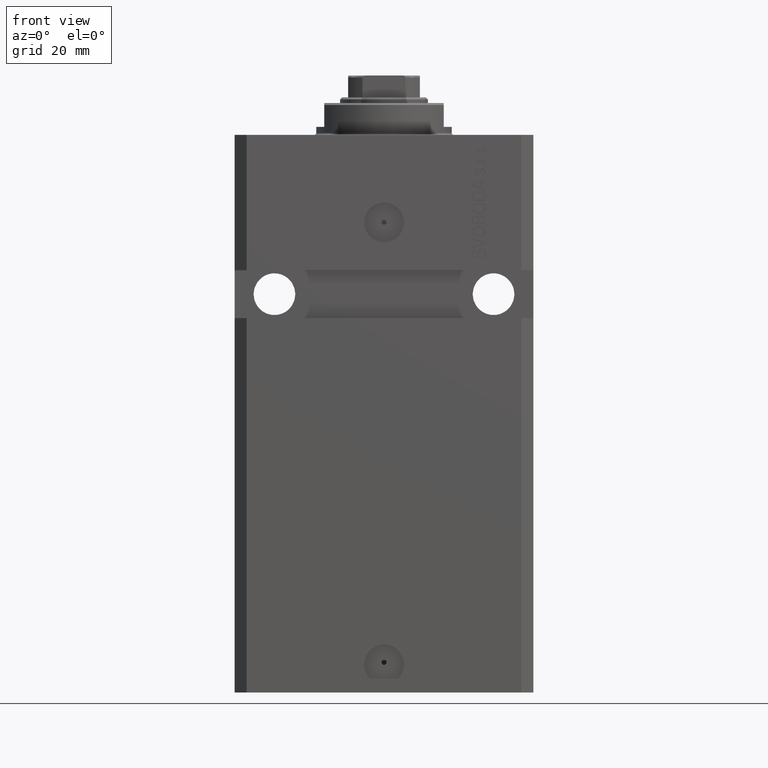
[diagram: clean part render]
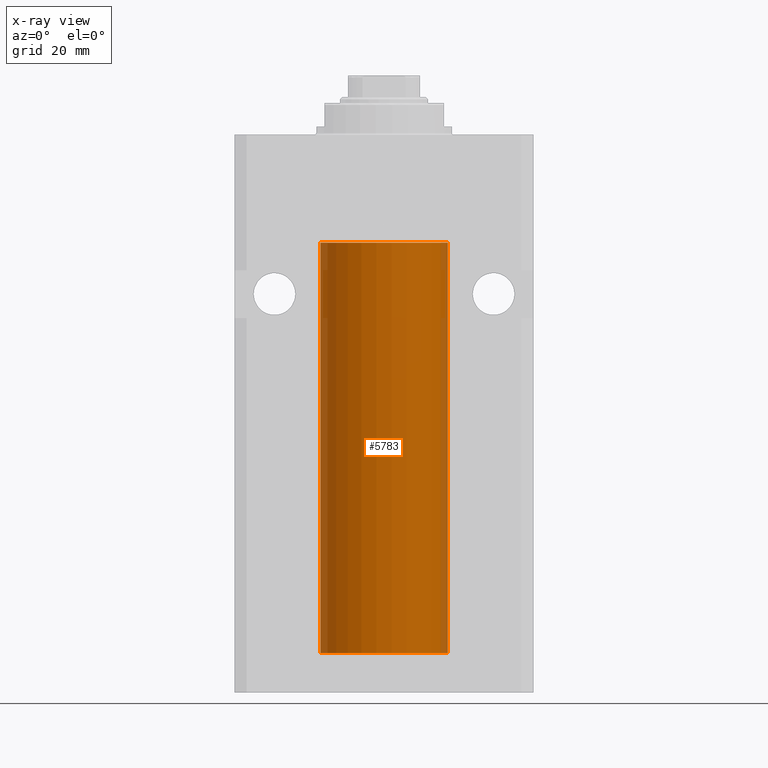
[diagram: x-ray — body ghosted, one internal face saturated and labeled with its STEP entity id]
A machine part, front view, then the same camera in x-ray: the body is ghosted and one INTERNAL B-rep face — a face not visible from any outside direction — is saturated and labeled: STEP entity #5783.
In plain terms, the highlighted cylindrical surface (partial cylindrical patch) has radius 16 mm, axis along (0, 0, 1).
Its self-contained STEP definition (entity closure, byte-faithful):
#42 = VERTEX_POINT ( 'NONE', #260 ) ;
#260 = CARTESIAN_POINT ( 'NONE',  ( -16.00000000000013145, 3.685127464164956467E-13, -128.6250000000034390 ) ) ;
#413 = CARTESIAN_POINT ( 'NONE',  ( 16.00000000000000000, 0.000000000000000000, -130.0999999999999943 ) ) ;
#1260 = CARTESIAN_POINT ( 'NONE',  ( 16.00000000000000000, 0.000000000000000000, -130.0999999999999943 ) ) ;
#3661 = ORIENTED_EDGE ( 'NONE', *, *, #6599, .T. ) ;
#4895 = ORIENTED_EDGE ( 'NONE', *, *, #32817, .F. ) ;
#5132 = CARTESIAN_POINT ( 'NONE',  ( -16.00000000000000711, -0.1631344205875858155, -128.6250000000001705 ) ) ;
#5783 = ADVANCED_FACE ( 'NONE', ( #8198 ), #26879, .F. ) ;
#6599 = EDGE_CURVE ( 'NONE', #10225, #10053, #44651, .T. ) ;
#7956 = DIRECTION ( 'NONE',  ( 1.000000000000000000, 0.000000000000000000, 0.000000000000000000 ) ) ;
#8198 = FACE_OUTER_BOUND ( 'NONE', #23351, .T. ) ;
#8560 = EDGE_CURVE ( 'NONE', #10053, #9652, #34443, .T. ) ;
#8615 = ORIENTED_EDGE ( 'NONE', *, *, #33547, .T. ) ;
#8847 = DIRECTION ( 'NONE',  ( -0.000000000000000000, -0.000000000000000000, 1.000000000000000000 ) ) ;
#9141 = CARTESIAN_POINT ( 'NONE',  ( -16.00000000000000000, -0.1651602165840369285, -127.3749999999999858 ) ) ;
#9652 = VERTEX_POINT ( 'NONE', #9914 ) ;
#9914 = CARTESIAN_POINT ( 'NONE',  ( 16.00000000000000000, 0.000000000000000000, -27.10000000000000142 ) ) ;
#10053 = VERTEX_POINT ( 'NONE', #44013 ) ;
#10225 = VERTEX_POINT ( 'NONE', #24823 ) ;
#10897 = DIRECTION ( 'NONE',  ( 0.000000000000000000, 0.000000000000000000, 1.000000000000000000 ) ) ;
#12230 = DIRECTION ( 'NONE',  ( -0.000000000000000000, -0.000000000000000000, 1.000000000000000000 ) ) ;
#13224 = EDGE_CURVE ( 'NONE', #38469, #42, #17895, .T. ) ;
#14358 = CARTESIAN_POINT ( 'NONE',  ( -16.00000000000000000, 1.959434878635765131E-15, -130.0999999999999943 ) ) ;
#15892 = CARTESIAN_POINT ( 'NONE',  ( 0.000000000000000000, 0.000000000000000000, -130.0999999999999943 ) ) ;
#17852 = VECTOR ( 'NONE', #12230, 1000.000000000000000 ) ;
#17895 = LINE ( 'NONE', #14358, #27006 ) ;
#19316 = CARTESIAN_POINT ( 'NONE',  ( 0.000000000000000000, 0.000000000000000000, -130.0999999999999943 ) ) ;
#19326 = CARTESIAN_POINT ( 'NONE',  ( -16.00000000000000000, 1.959434878635765131E-15, -130.0999999999999943 ) ) ;
#19572 = CARTESIAN_POINT ( 'NONE',  ( -15.98779367741636648, -0.6248626626677442619, -128.1653963198503732 ) ) ;
#19796 = CARTESIAN_POINT ( 'NONE',  ( -15.99069874693027948, -0.5575440858643410103, -127.6738242501145066 ) ) ;
#21317 = CARTESIAN_POINT ( 'NONE',  ( 0.000000000000000000, 0.000000000000000000, -27.10000000000000142 ) ) ;
#23114 = CARTESIAN_POINT ( 'NONE',  ( -16.00000000000000000, -1.314639473218082033E-14, -127.3749999999999858 ) ) ;
#23351 = EDGE_LOOP ( 'NONE', ( #24977, #41132, #8615, #3661, #38269, #4895 ) ) ;
#23450 = DIRECTION ( 'NONE',  ( 0.000000000000000000, 0.000000000000000000, 1.000000000000000000 ) ) ;
#23868 = AXIS2_PLACEMENT_3D ( 'NONE', #21317, #10897, #36434 ) ;
#23980 = CIRCLE ( 'NONE', #33819, 16.00000000000000000 ) ;
#24823 = CARTESIAN_POINT ( 'NONE',  ( -16.00000000000000000, -1.314639473218082033E-14, -127.3749999999999858 ) ) ;
#24977 = ORIENTED_EDGE ( 'NONE', *, *, #36135, .F. ) ;
#25717 = VERTEX_POINT ( 'NONE', #413 ) ;
#26522 = DIRECTION ( 'NONE',  ( 1.000000000000000000, 0.000000000000000000, 0.000000000000000000 ) ) ;
#26879 = CYLINDRICAL_SURFACE ( 'NONE', #43521, 16.00000000000000000 ) ;
#27006 = VECTOR ( 'NONE', #36974, 1000.000000000000000 ) ;
#27341 = CARTESIAN_POINT ( 'NONE',  ( -15.99708815688950381, -0.3263115027448994510, -128.5574096919822580 ) ) ;
#30437 = DIRECTION ( 'NONE',  ( -0.000000000000000000, -0.000000000000000000, 1.000000000000000000 ) ) ;
#32817 = EDGE_CURVE ( 'NONE', #25717, #9652, #41254, .T. ) ;
#33547 = EDGE_CURVE ( 'NONE', #42, #10225, #38518, .T. ) ;
#33819 = AXIS2_PLACEMENT_3D ( 'NONE', #15892, #23450, #26522 ) ;
#34013 = CARTESIAN_POINT ( 'NONE',  ( -15.98778295664474491, -0.6251369050462284305, -127.8356432545786561 ) ) ;
#34443 = CIRCLE ( 'NONE', #23868, 16.00000000000000000 ) ;
#36135 = EDGE_CURVE ( 'NONE', #38469, #25717, #23980, .T. ) ;
#36434 = DIRECTION ( 'NONE',  ( 1.000000000000000000, 0.000000000000000000, 0.000000000000000000 ) ) ;
#36974 = DIRECTION ( 'NONE',  ( -0.000000000000000000, -0.000000000000000000, 1.000000000000000000 ) ) ;
#37480 = CARTESIAN_POINT ( 'NONE',  ( -16.00000000000000000, 1.959434878635765131E-15, -130.0999999999999943 ) ) ;
#38269 = ORIENTED_EDGE ( 'NONE', *, *, #8560, .T. ) ;
#38469 = VERTEX_POINT ( 'NONE', #37480 ) ;
#38518 = B_SPLINE_CURVE_WITH_KNOTS ( 'NONE', 3,
 ( #41325, #5132, #27341, #41780, #19572, #34013, #19796, #41087, #9141, #23114 ),
 .UNSPECIFIED., .F., .F.,
 ( 4, 2, 2, 2, 4 ),
 ( 0.001954221322144799027, 0.002442665739568306450, 0.002931110156991814306, 0.003419554574415321728, 0.003907998991838829150 ),
 .UNSPECIFIED. ) ;
#41087 = CARTESIAN_POINT ( 'NONE',  ( -15.99707459521409625, -0.3269651631532018987, -127.4429184892856028 ) ) ;
#41132 = ORIENTED_EDGE ( 'NONE', *, *, #13224, .T. ) ;
#41254 = LINE ( 'NONE', #1260, #46649 ) ;
#41325 = CARTESIAN_POINT ( 'NONE',  ( -16.00000000000013145, 3.685127464164956467E-13, -128.6250000000034390 ) ) ;
#41780 = CARTESIAN_POINT ( 'NONE',  ( -15.99071965633095793, -0.5569502390237165423, -128.3270950821868439 ) ) ;
#43521 = AXIS2_PLACEMENT_3D ( 'NONE', #19316, #30437, #7956 ) ;
#44013 = CARTESIAN_POINT ( 'NONE',  ( -16.00000000000000000, 1.959434878635765131E-15, -27.10000000000000142 ) ) ;
#44651 = LINE ( 'NONE', #19326, #17852 ) ;
#46649 = VECTOR ( 'NONE', #8847, 1000.000000000000000 ) ;